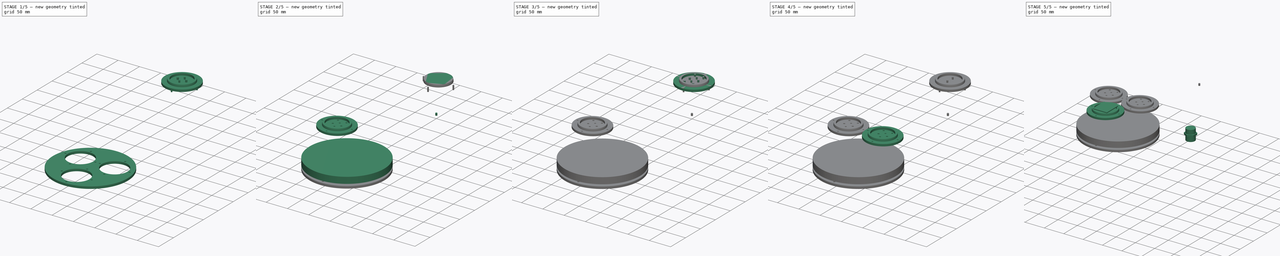
[diagram: build sequence overview — one tinted view per stage of 5, left to right]
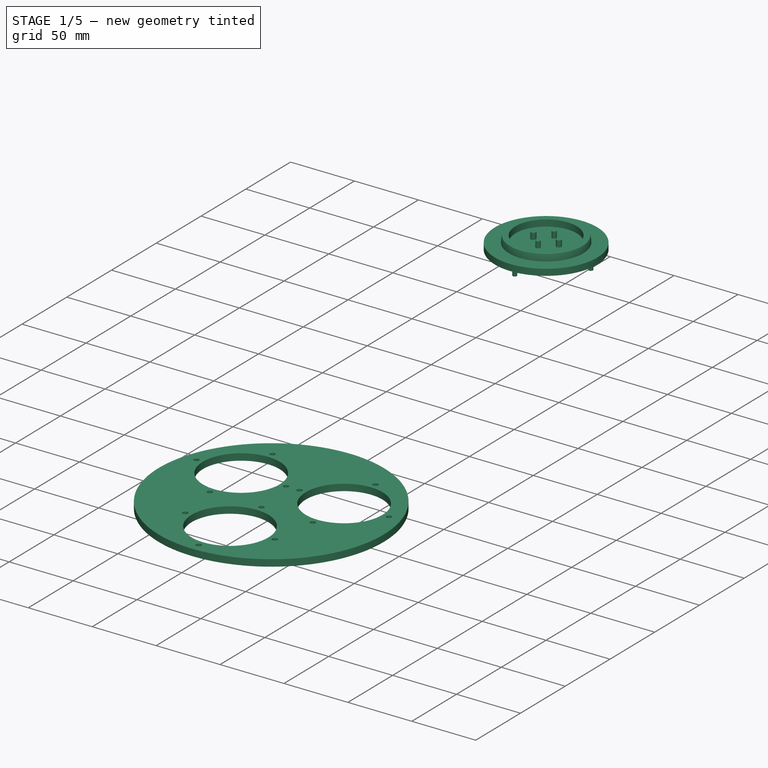
[diagram: stage 1 of 5 — iso view after this stage's code; geometry added in this stage tinted green]
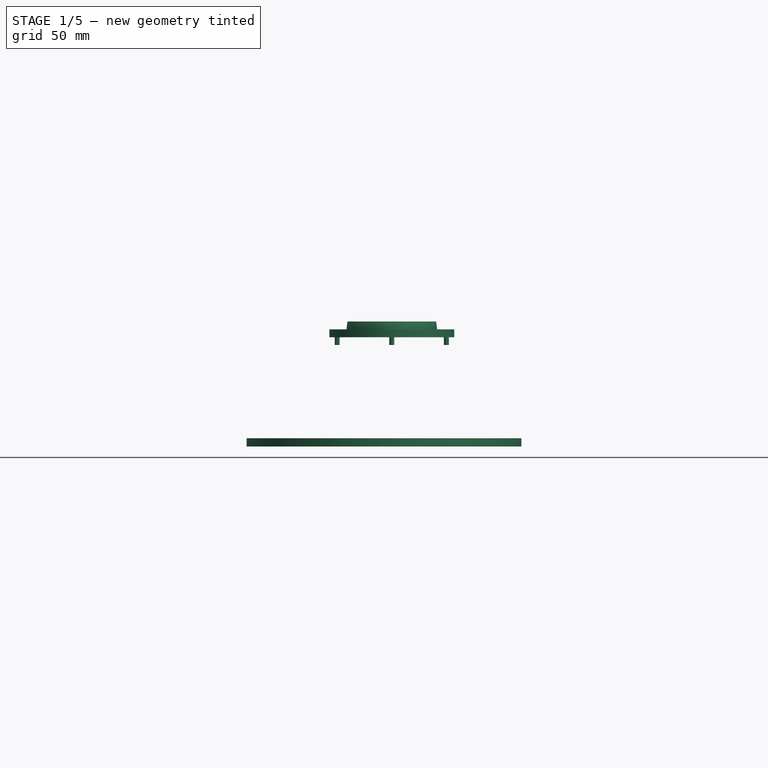
[diagram: stage 1 of 5 — front view after this stage's code; geometry added in this stage tinted green]
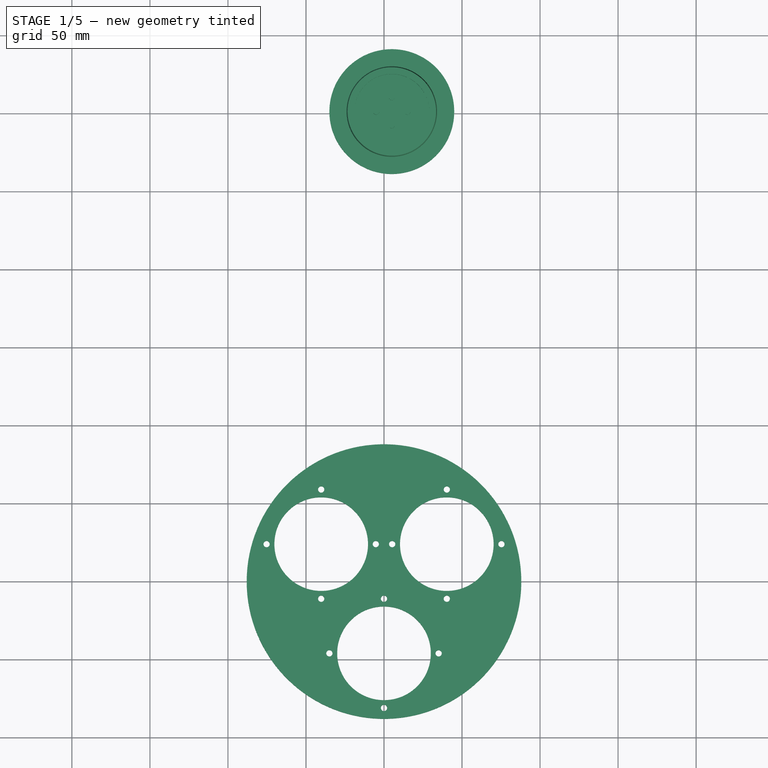
[diagram: stage 1 of 5 — top view after this stage's code; geometry added in this stage tinted green]
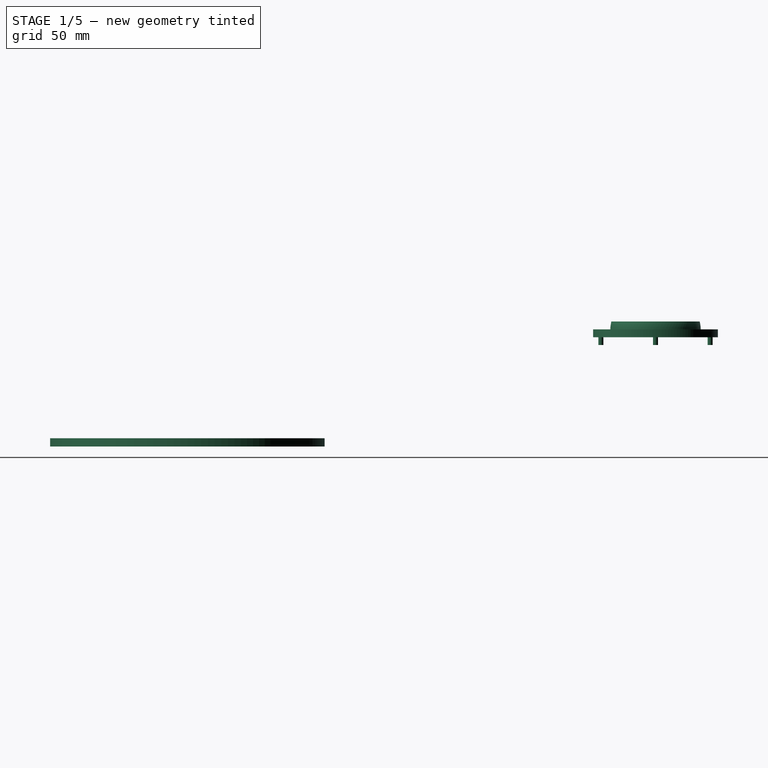
[diagram: stage 1 of 5 — right view after this stage's code; geometry added in this stage tinted green]
FCSTD DOCUMENT  (FreeCAD 0.20R29410 (Git))
Label: lightSensingModule
License: All rights reserved
LicenseURL: http://en.wikipedia.org/wiki/All_rights_reserved
objects: Part::Cylinder×45, Part::MultiFuse×25, Part::Feature×24, Part::Cut×9, Sketcher::SketchObject×3, Part::Sphere×3, Part::Extrusion×2, App::Part×1, Part::Box×1
note: 112 computed .brp shape members not serialized (recipe doc carries the construction recipe); baked Part::Feature solids carry a one-line shape summary decoded from their .brp

FEATURE [Part::Cylinder] Cylinder108  label="base006"
  Angle = 360
  AttacherType = Attacher::AttachEngine3D
  FirstAngle = 0
  Height = 5
  Placement = pos=(5,0,70) rot=(0,0,1;0rad)
  Radius = 40
  SecondAngle = 0
FEATURE [Part::Cylinder] Cylinder109  label="baseCut003"
  Angle = 360
  AttacherType = Attacher::AttachEngine3D
  FirstAngle = 0
  Height = 7
  Placement = pos=(5,0,74) rot=(0,0,1;0rad)
  Radius = 24
  SecondAngle = 0
FEATURE [Part::Cylinder] Cylinder110  label="wireCUt006"
  Angle = 360
  AttacherType = Attacher::AttachEngine3D
  FirstAngle = 0
  Height = 10
  Placement = pos=(-5,0,70) rot=(0,0,1;0rad)
  Radius = 2
  SecondAngle = 0
FEATURE [Part::Cylinder] Cylinder111  label="wireCUt007"
  Angle = 360
  AttacherType = Attacher::AttachEngine3D
  FirstAngle = 0
  Height = 10
  Placement = pos=(15,0,70) rot=(0,0,1;0rad)
  Radius = 2
  SecondAngle = 0
FEATURE [Part::Cylinder] Cylinder112  label="m3Cuts006"
  Angle = 360
  AttacherType = Attacher::AttachEngine3D
  FirstAngle = 0
  Height = 10
  Placement = pos=(5,-9,70) rot=(0,0,1;0rad)
  Radius = 1.75
  SecondAngle = 0
FEATURE [Part::Cylinder] Cylinder113  label="m3Cuts007"
  Angle = 360
  AttacherType = Attacher::AttachEngine3D
  FirstAngle = 0
  Height = 10
  Placement = pos=(5,9,70) rot=(0,0,1;0rad)
  Radius = 1.75
  SecondAngle = 0
FEATURE [Part::Cylinder] Cylinder114  label="m2HeatSetInsets012"
  Angle = 360
  AttacherType = Attacher::AttachEngine3D
  FirstAngle = 0
  Height = 10
  Placement = pos=(-30,0,65) rot=(0,0,1;0rad)
  Radius = 1.6
  SecondAngle = 0
FEATURE [Part::Cylinder] Cylinder115  label="m2HeatSetInsets013"
  Angle = 360
  AttacherType = Attacher::AttachEngine3D
  FirstAngle = 0
  Height = 10
  Placement = pos=(40,0,65) rot=(0,0,1;0rad)
  Radius = 1.6
  SecondAngle = 0
FEATURE [Part::Cylinder] Cylinder116  label="m2HeatSetInsets014"
  Angle = 360
  AttacherType = Attacher::AttachEngine3D
  FirstAngle = 0
  Height = 10
  Placement = pos=(5,35,65) rot=(0,0,1;0rad)
  Radius = 1.6
  SecondAngle = 0
FEATURE [Part::Cylinder] Cylinder117  label="m2HeatSetInsets015"
  Angle = 360
  AttacherType = Attacher::AttachEngine3D
  FirstAngle = 0
  Height = 10
  Placement = pos=(5,-35,65) rot=(0,0,1;0rad)
  Radius = 1.6
  SecondAngle = 0
FEATURE [Part::MultiFuse] Fusion033  label="wireCuts003"
  Shapes = -> [Cylinder110,Cylinder111]
FEATURE [Part::MultiFuse] Fusion034  label="m3Cute003"
  Shapes = -> [Cylinder112,Cylinder113]
FEATURE [Part::MultiFuse] Fusion037
  Shapes = -> [Cylinder114,Cylinder115,Cylinder116,Cylinder117]
FEATURE [Part::Sphere] Sphere004  label="SphereBase003"
  Angle1 = 0
  Angle2 = 12
  Angle3 = 360
  AttacherType = Attacher::AttachEngine3D
  Placement = pos=(5,0,74) rot=(0,0,1;0rad)
  Radius = 29
FEATURE [Part::Cut] Cut012
  Base = -> Sphere004
  Tool = -> Cylinder109
FEATURE [Part::MultiFuse] Fusion036  label="base007"
  Shapes = -> [Cylinder108,Cut012]
FEATURE [Sketcher::SketchObject] Sketch001
  FullyConstrained = true
  sketch-geometry (16):
    g0: Circle CenterX=0 CenterY=-300 CenterZ=0 NormalX=0 NormalY=0 NormalZ=1 AngleXU=0 Radius=88
    g1: Circle CenterX=-75.25 CenterY=-276 CenterZ=0 NormalX=0 NormalY=0 NormalZ=1 AngleXU=0 Radius=2
    g2: Circle CenterX=-40.25 CenterY=-241 CenterZ=0 NormalX=0 NormalY=0 NormalZ=1 AngleXU=0 Radius=2
    g3: Circle CenterX=-5.25 CenterY=-276 CenterZ=0 NormalX=0 NormalY=0 NormalZ=1 AngleXU=0 Radius=2
    g4: Circle CenterX=-40.25 CenterY=-311 CenterZ=0 NormalX=0 NormalY=0 NormalZ=1 AngleXU=0 Radius=2
    g5: Circle CenterX=40.25 CenterY=-241 CenterZ=0 NormalX=0 NormalY=0 NormalZ=1 AngleXU=0 Radius=2
    g6: Circle CenterX=75.25 CenterY=-276 CenterZ=0 NormalX=0 NormalY=0 NormalZ=1 AngleXU=0 Radius=2
    g7: Circle CenterX=40.25 CenterY=-311 CenterZ=0 NormalX=0 NormalY=0 NormalZ=1 AngleXU=0 Radius=2
    g8: Circle CenterX=5.25 CenterY=-276 CenterZ=0 NormalX=0 NormalY=0 NormalZ=1 AngleXU=0 Radius=2
    g9: Circle CenterX=0 CenterY=-311 CenterZ=0 NormalX=0 NormalY=0 NormalZ=1 AngleXU=0 Radius=2
    g10: Circle CenterX=-35 CenterY=-346 CenterZ=0 NormalX=0 NormalY=0 NormalZ=1 AngleXU=0 Radius=2
    g11: Circle CenterX=35 CenterY=-346 CenterZ=0 NormalX=0 NormalY=0 NormalZ=1 AngleXU=0 Radius=2
    g12: Circle CenterX=0 CenterY=-381 CenterZ=0 NormalX=0 NormalY=0 NormalZ=1 AngleXU=0 Radius=2
    g13: Circle CenterX=-40.25 CenterY=-276 CenterZ=0 NormalX=0 NormalY=0 NormalZ=1 AngleXU=0 Radius=30
    g14: Circle CenterX=40.25 CenterY=-276 CenterZ=0 NormalX=0 NormalY=0 NormalZ=1 AngleXU=0 Radius=30
    g15: Circle CenterX=0 CenterY=-346 CenterZ=0 NormalX=0 NormalY=0 NormalZ=1 AngleXU=0 Radius=30
  constraints (48):
    c: DistanceX(g0) = 0
    c: DistanceY(g0) = -300
    c: Radius(g0) = 88
    c: PointOnObject(g9,g-2)
    c: PointOnObject(g12,g-2)
    c: Equal(g12,g10)
    c: Equal(g12,g9)
    c: Equal(g12,g11)
    c: Equal(g12,g4)
    c: Equal(g12,g1)
    c: Equal(g12,g2)
    c: Equal(g12,g3)
    c: Equal(g12,g8)
    c: Equal(g12,g7)
    c: Equal(g12,g6)
    c: Equal(g12,g5)
    c: Radius(g12) = 2
    c: DistanceY(g6) = -276
    c: DistanceY(g8,g6) = 0
    c: DistanceY(g3,g6) = 0
    c: DistanceY(g6,g1) = 0
    c: DistanceY(g11,g10) = 0
    c: DistanceY(g2,g5) = 0
    c: DistanceY(g4,g7) = 0
    c: DistanceX(g5,g7) = 0
    c: DistanceX(g4,g2) = 0
    c: DistanceX(g3) = -5.25
    c: DistanceX(g8) = 5.25
    c: DistanceX(g1) = -75.25
    c: DistanceX(g6) = 75.25
    c: DistanceX(g2) = -40.25
    c: DistanceY(g2) = -241
    c: DistanceX(g5) = 40.25
    c: DistanceY(g4) = -311
    c: DistanceY(g9) = -311
    c: DistanceY(g10) = -346
    c: DistanceX(g10) = -35
    c: DistanceX(g11) = 35
    c: DistanceY(g12) = -381
    c: PointOnObject(g15,g-2)
    c: Equal(g14,g13)
    c: Equal(g14,g15)
    c: Radius(g14) = 30
    c: DistanceY(g13,g1) = 0
    c: DistanceX(g2,g13) = 0
    c: DistanceX(g14,g5) = 0
    c: DistanceY(g14,g1) = 0
    c: DistanceY(g10,g15) = 0
FEATURE [Sketcher::SketchObject] Sketch002
  FullyConstrained = true
  sketch-geometry (3):
    g0: Circle CenterX=0 CenterY=-346 CenterZ=0 NormalX=0 NormalY=0 NormalZ=1 AngleXU=0 Radius=40
    g1: Circle CenterX=40 CenterY=-276 CenterZ=0 NormalX=0 NormalY=0 NormalZ=1 AngleXU=0 Radius=40
    g2: Circle CenterX=-40 CenterY=-276 CenterZ=0 NormalX=0 NormalY=0 NormalZ=1 AngleXU=0 Radius=40
  constraints (9):
    c: DistanceX(g0) = 0
    c: DistanceY(g0) = -346
    c: Equal(g1,g2)
    c: Equal(g1,g0)
    c: Radius(g1) = 40
    c: DistanceY(g2,g1) = 0
    c: DistanceX(g2) = -40
    c: DistanceX(g1) = 40
    c: DistanceY(g1) = -276
FEATURE [Part::Extrusion] Extrude001
  Base = -> Sketch001
  Dir = (0,0,1)
  DirMode = 2
  FaceMakerClass = Part::FaceMakerBullseye
  LengthFwd = 5.25
  LengthRev = 0
  Solid = true
  Symmetric = false
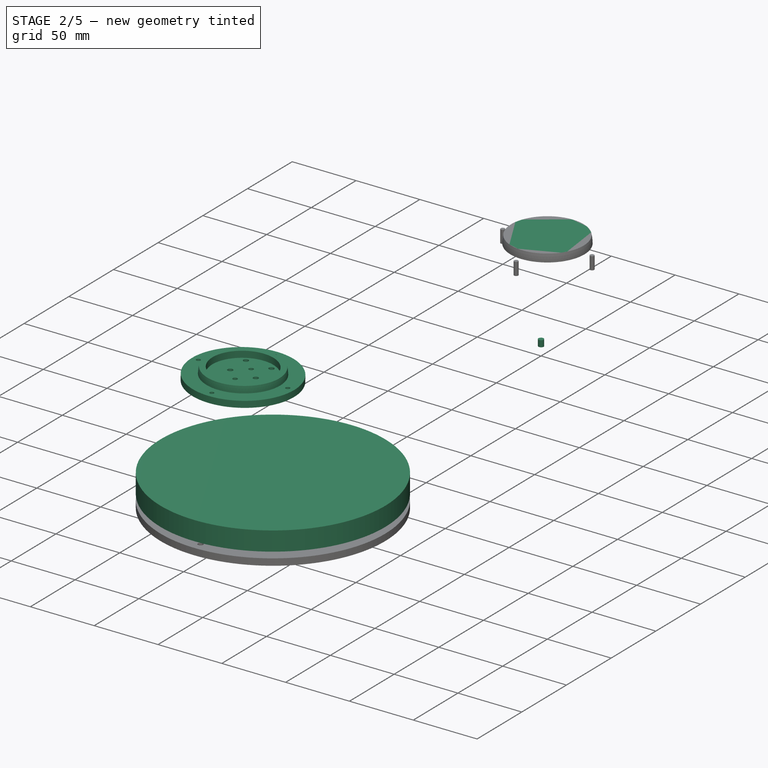
[diagram: stage 2 of 5 — iso view after this stage's code; geometry added in this stage tinted green]
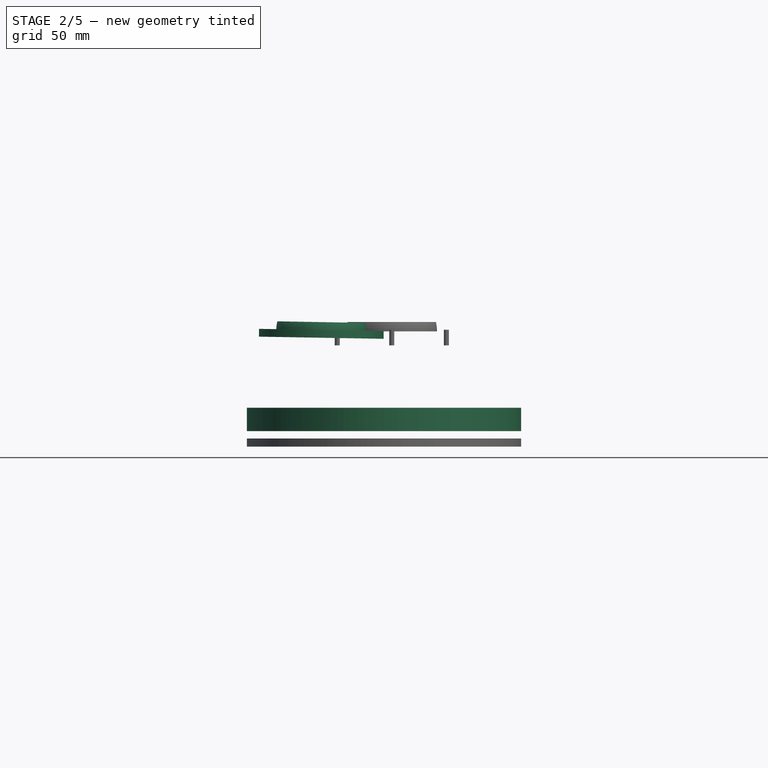
[diagram: stage 2 of 5 — front view after this stage's code; geometry added in this stage tinted green]
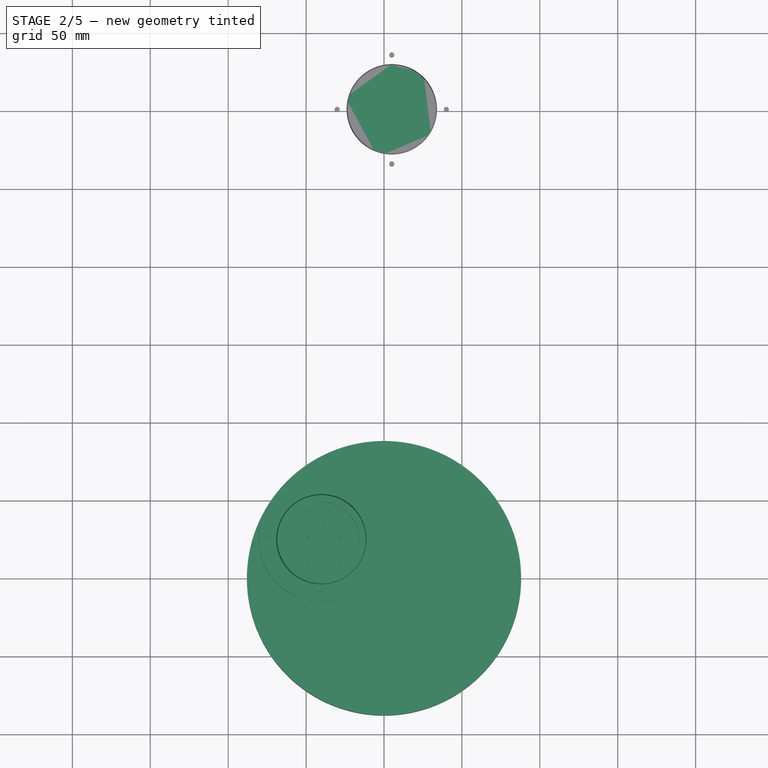
[diagram: stage 2 of 5 — top view after this stage's code; geometry added in this stage tinted green]
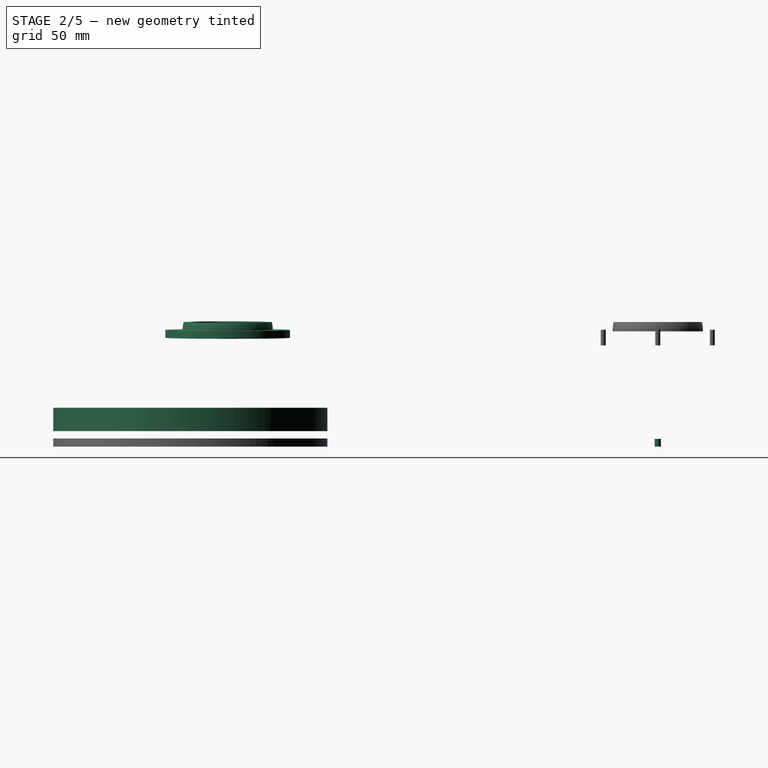
[diagram: stage 2 of 5 — right view after this stage's code; geometry added in this stage tinted green]
FEATURE [Part::Cylinder] Cylinder060  label="m2HeatSetInsets008"
  Angle = 360
  AttacherType = Attacher::AttachEngine3D
  FirstAngle = 0
  Height = 10
  Placement = pos=(-30,0,65) rot=(0,0,1;0rad)
  Radius = 1.6
  SecondAngle = 0
FEATURE [Part::Cylinder] Cylinder061  label="m2HeatSetInsets009"
  Angle = 360
  AttacherType = Attacher::AttachEngine3D
  FirstAngle = 0
  Height = 10
  Placement = pos=(40,0,65) rot=(0,0,1;0rad)
  Radius = 1.6
  SecondAngle = 0
FEATURE [Part::Cylinder] Cylinder062  label="m2HeatSetInsets010"
  Angle = 360
  AttacherType = Attacher::AttachEngine3D
  FirstAngle = 0
  Height = 10
  Placement = pos=(5,35,65) rot=(0,0,1;0rad)
  Radius = 1.6
  SecondAngle = 0
FEATURE [Part::Cylinder] Cylinder063  label="m2HeatSetInsets011"
  Angle = 360
  AttacherType = Attacher::AttachEngine3D
  FirstAngle = 0
  Height = 10
  Placement = pos=(5,-35,65) rot=(0,0,1;0rad)
  Radius = 1.6
  SecondAngle = 0
FEATURE [Part::Sphere] Sphere003  label="SphereBase002"
  Angle1 = 0
  Angle2 = 12
  Angle3 = 360
  AttacherType = Attacher::AttachEngine3D
  Placement = pos=(5,0,74) rot=(0,0,1;0rad)
  Radius = 29
FEATURE [Part::Cylinder] Cylinder102  label="cover002"
  Angle = 360
  AttacherType = Attacher::AttachEngine3D
  FirstAngle = 0
  Height = 15
  Placement = pos=(0,-300,10) rot=(0,0,-1;1.5708rad)
  Radius = 88
  SecondAngle = 0
FEATURE [Part::Cylinder] Cylinder103  label="cover003"
  Angle = 360
  AttacherType = Attacher::AttachEngine3D
  FirstAngle = 0
  Height = 5
  Radius = 2
  SecondAngle = 0
FEATURE [Part::Cylinder] Cylinder104
  Angle = 360
  AttacherType = Attacher::AttachEngine3D
  FirstAngle = 0
  Height = 10
  Placement = pos=(0,-21,0) rot=(0,0,1;0rad)
  Radius = 2
  SecondAngle = 0
FEATURE [Part::Cylinder] Cylinder105
  Angle = 360
  AttacherType = Attacher::AttachEngine3D
  FirstAngle = 0
  Height = 10
  Placement = pos=(20,-21,0) rot=(0,0,1;0rad)
  Radius = 2
  SecondAngle = 0
FEATURE [Part::Cylinder] Cylinder106
  Angle = 360
  AttacherType = Attacher::AttachEngine3D
  FirstAngle = 0
  Height = 10
  Placement = pos=(0,-21,0) rot=(0,0,1;0rad)
  Radius = 2
  SecondAngle = 0
FEATURE [Part::Cylinder] Cylinder107
  Angle = 360
  AttacherType = Attacher::AttachEngine3D
  FirstAngle = 0
  Height = 10
  Placement = pos=(20,-21,0) rot=(0,0,1;0rad)
  Radius = 2
  SecondAngle = 0
FEATURE [Part::MultiFuse] Fusion030  label="m3HeatSetCuts009"
  Placement = pos=(-5,38.5,70) rot=(0,0,1;0rad)
  Shapes = -> [Cylinder105,Cylinder104]
FEATURE [Part::MultiFuse] Fusion031  label="m3HeatSetCuts010"
  Placement = pos=(-5,3.5,70) rot=(0,0,1;0rad)
  Shapes = -> [Cylinder107,Cylinder106]
FEATURE [Part::MultiFuse] Fusion032  label="m3HeatSetCuts011"
  Shapes = -> [Fusion031,Fusion030]
FEATURE [Part::MultiFuse] Fusion035  label="baseCUts003"
  Shapes = -> [Fusion032,Fusion033,Fusion034]
FEATURE [Part::Cut] Cut013
  Base = -> Fusion036
  Tool = -> Fusion035
FEATURE [Part::Cut] Cut014  label="lightModule003"
  Base = -> Cut013
  Placement = pos=(-46.5,-276,0) rot=(0,1,0;0.017453rad)
  Tool = -> Fusion037
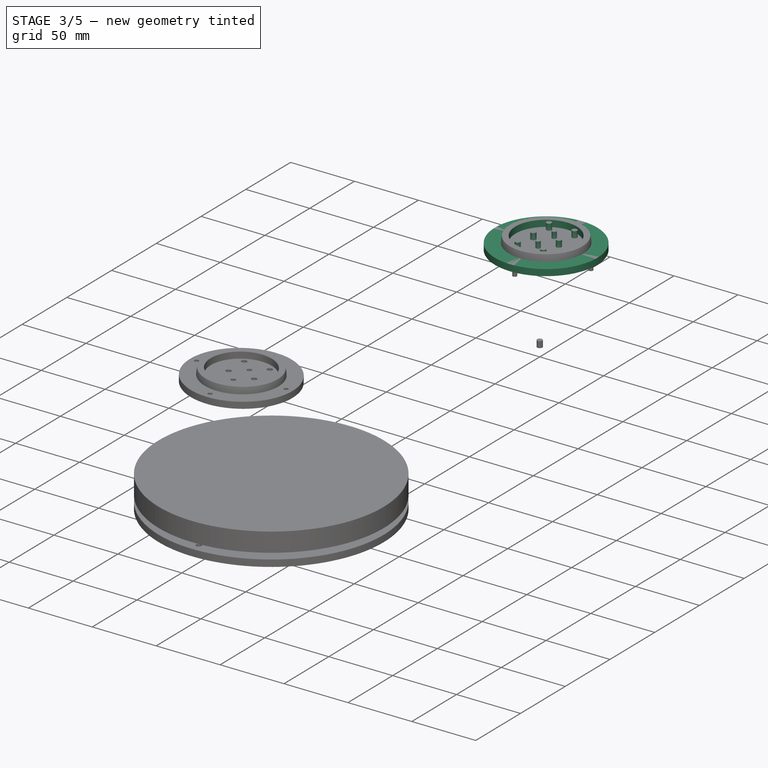
[diagram: stage 3 of 5 — iso view after this stage's code; geometry added in this stage tinted green]
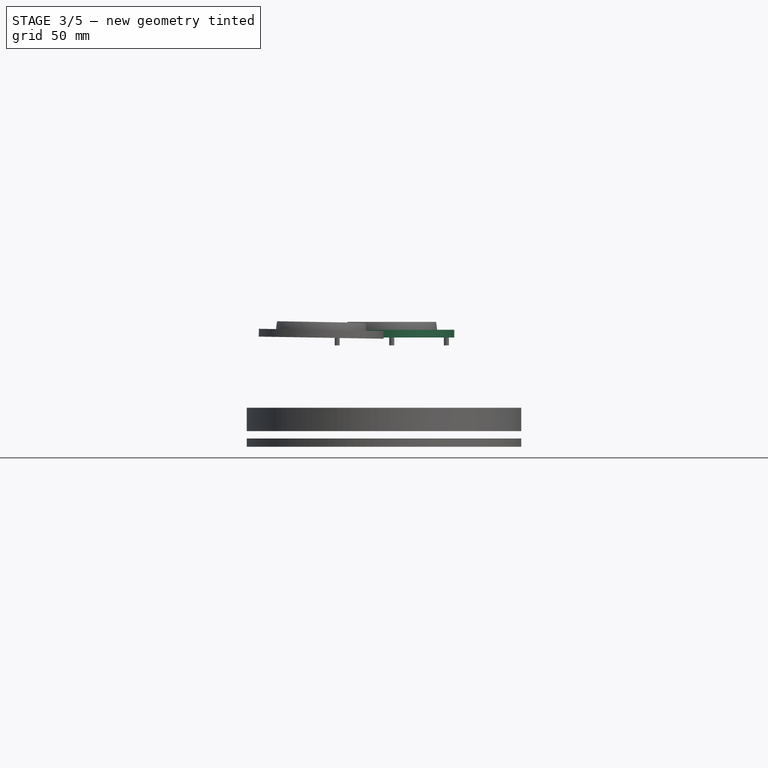
[diagram: stage 3 of 5 — front view after this stage's code; geometry added in this stage tinted green]
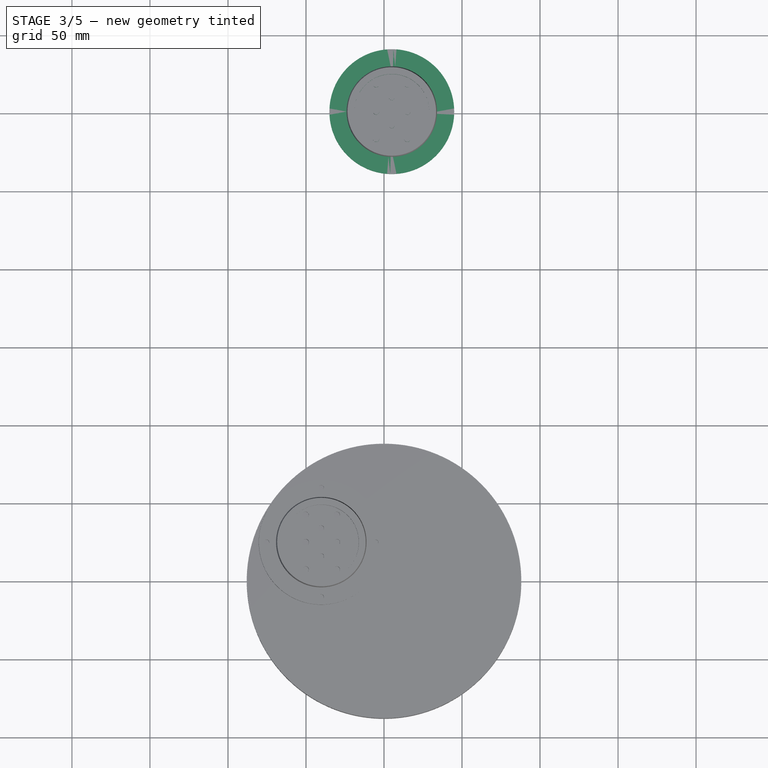
[diagram: stage 3 of 5 — top view after this stage's code; geometry added in this stage tinted green]
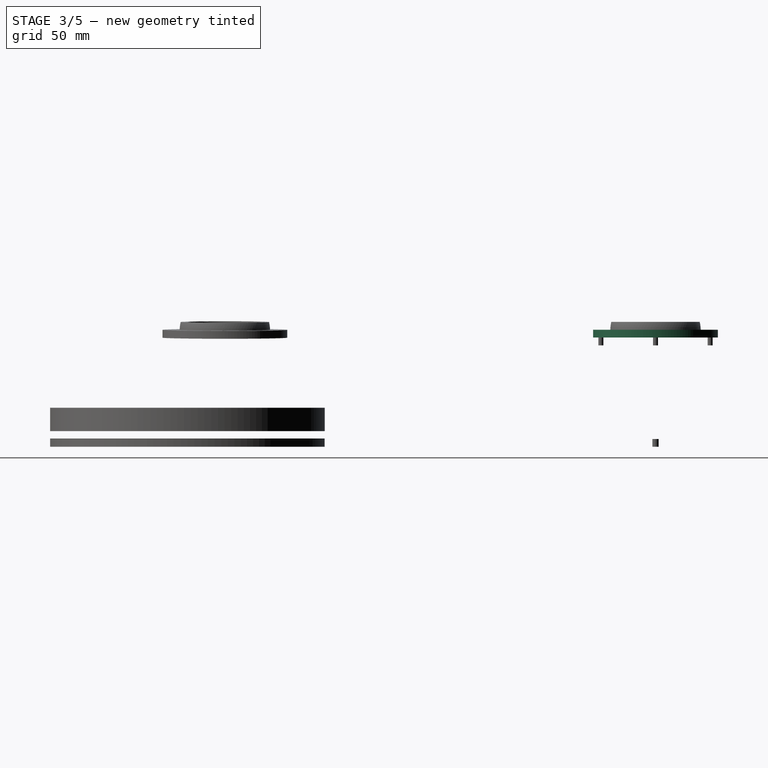
[diagram: stage 3 of 5 — right view after this stage's code; geometry added in this stage tinted green]
FEATURE [Part::Cylinder] Cylinder050
  Angle = 360
  AttacherType = Attacher::AttachEngine3D
  FirstAngle = 0
  Height = 10
  Placement = pos=(0,-21,0) rot=(0,0,1;0rad)
  Radius = 2
  SecondAngle = 0
FEATURE [Part::Cylinder] Cylinder051
  Angle = 360
  AttacherType = Attacher::AttachEngine3D
  FirstAngle = 0
  Height = 10
  Placement = pos=(20,-21,0) rot=(0,0,1;0rad)
  Radius = 2
  SecondAngle = 0
FEATURE [Part::Cylinder] Cylinder052
  Angle = 360
  AttacherType = Attacher::AttachEngine3D
  FirstAngle = 0
  Height = 10
  Placement = pos=(0,-21,0) rot=(0,0,1;0rad)
  Radius = 2
  SecondAngle = 0
FEATURE [Part::Cylinder] Cylinder053
  Angle = 360
  AttacherType = Attacher::AttachEngine3D
  FirstAngle = 0
  Height = 10
  Placement = pos=(20,-21,0) rot=(0,0,1;0rad)
  Radius = 2
  SecondAngle = 0
FEATURE [Part::Cylinder] Cylinder054  label="base004"
  Angle = 360
  AttacherType = Attacher::AttachEngine3D
  FirstAngle = 0
  Height = 5
  Placement = pos=(5,0,70) rot=(0,0,1;0rad)
  Radius = 40
  SecondAngle = 0
FEATURE [Part::Cylinder] Cylinder055  label="baseCut002"
  Angle = 360
  AttacherType = Attacher::AttachEngine3D
  FirstAngle = 0
  Height = 7
  Placement = pos=(5,0,74) rot=(0,0,1;0rad)
  Radius = 24
  SecondAngle = 0
FEATURE [Part::Cylinder] Cylinder056  label="wireCUt004"
  Angle = 360
  AttacherType = Attacher::AttachEngine3D
  FirstAngle = 0
  Height = 10
  Placement = pos=(-5,0,70) rot=(0,0,1;0rad)
  Radius = 2
  SecondAngle = 0
FEATURE [Part::Cylinder] Cylinder057  label="wireCUt005"
  Angle = 360
  AttacherType = Attacher::AttachEngine3D
  FirstAngle = 0
  Height = 10
  Placement = pos=(15,0,70) rot=(0,0,1;0rad)
  Radius = 2
  SecondAngle = 0
FEATURE [Part::Cylinder] Cylinder058  label="m3Cuts004"
  Angle = 360
  AttacherType = Attacher::AttachEngine3D
  FirstAngle = 0
  Height = 10
  Placement = pos=(5,-9,70) rot=(0,0,1;0rad)
  Radius = 1.75
  SecondAngle = 0
FEATURE [Part::Cylinder] Cylinder059  label="m3Cuts005"
  Angle = 360
  AttacherType = Attacher::AttachEngine3D
  FirstAngle = 0
  Height = 10
  Placement = pos=(5,9,70) rot=(0,0,1;0rad)
  Radius = 1.75
  SecondAngle = 0
FEATURE [Part::MultiFuse] Fusion022  label="m3HeatSetCuts006"
  Placement = pos=(-5,38.5,70) rot=(0,0,1;0rad)
  Shapes = -> [Cylinder051,Cylinder050]
FEATURE [Part::MultiFuse] Fusion023  label="m3HeatSetCuts007"
  Placement = pos=(-5,3.5,70) rot=(0,0,1;0rad)
  Shapes = -> [Cylinder053,Cylinder052]
FEATURE [Part::MultiFuse] Fusion025  label="wireCuts002"
  Shapes = -> [Cylinder056,Cylinder057]
FEATURE [Part::MultiFuse] Fusion026  label="m3Cute002"
  Shapes = -> [Cylinder058,Cylinder059]
FEATURE [Part::MultiFuse] Fusion029
  Shapes = -> [Cylinder060,Cylinder061,Cylinder062,Cylinder063]
FEATURE [Part::Cut] Cut009
  Base = -> Sphere003
  Tool = -> Cylinder055
FEATURE [Part::MultiFuse] Fusion028  label="base005"
  Shapes = -> [Cylinder054,Cut009]
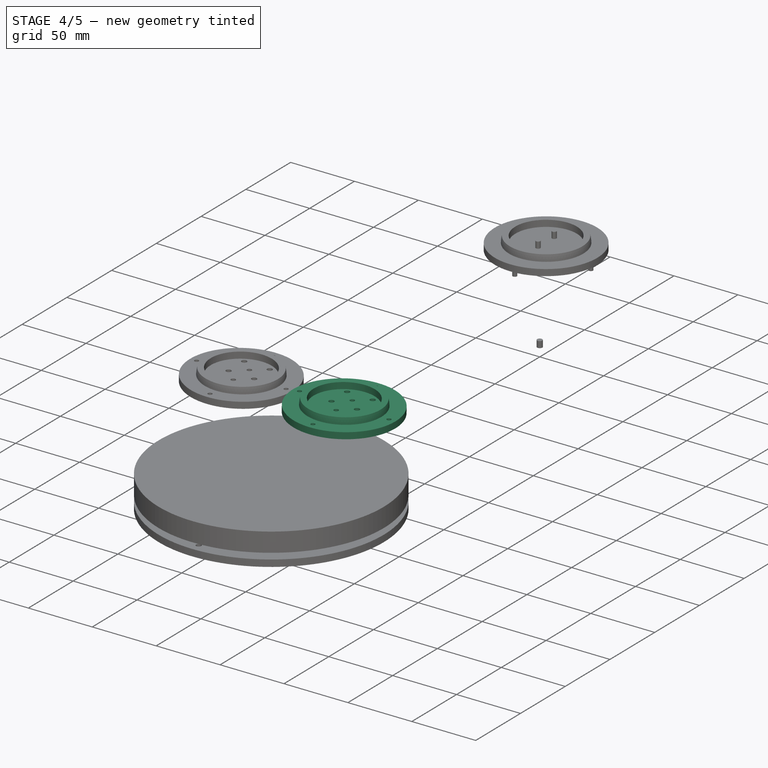
[diagram: stage 4 of 5 — iso view after this stage's code; geometry added in this stage tinted green]
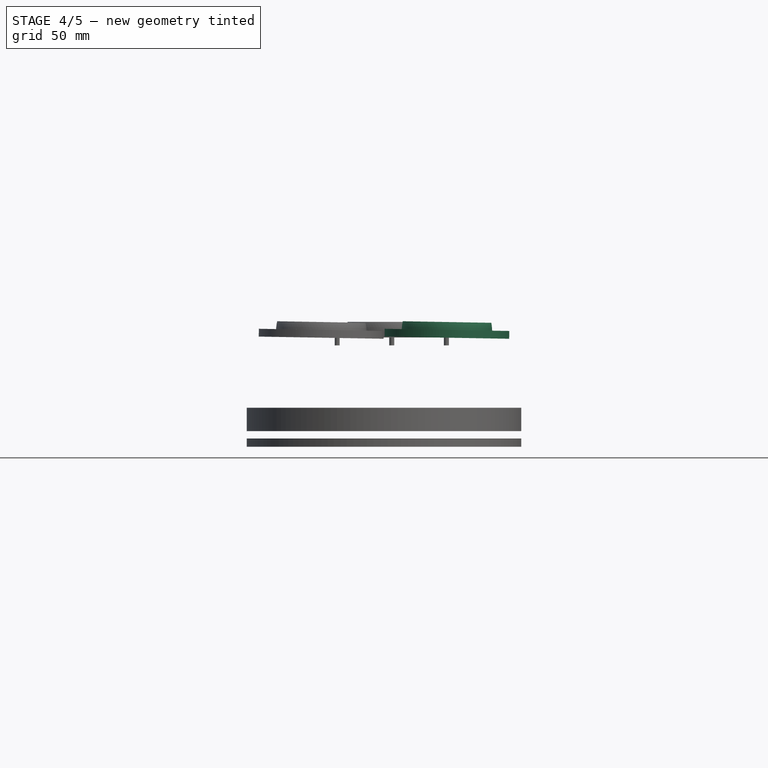
[diagram: stage 4 of 5 — front view after this stage's code; geometry added in this stage tinted green]
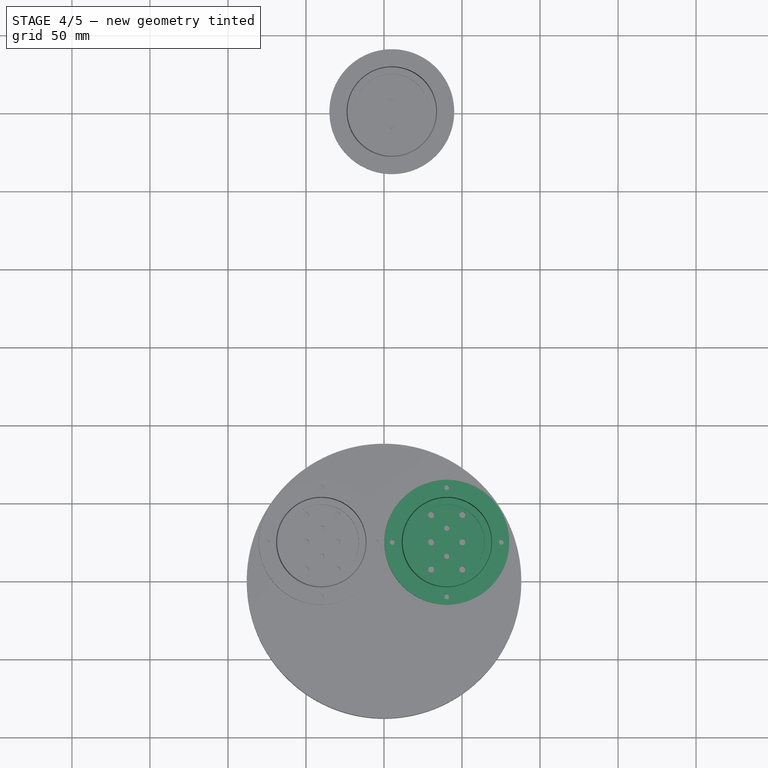
[diagram: stage 4 of 5 — top view after this stage's code; geometry added in this stage tinted green]
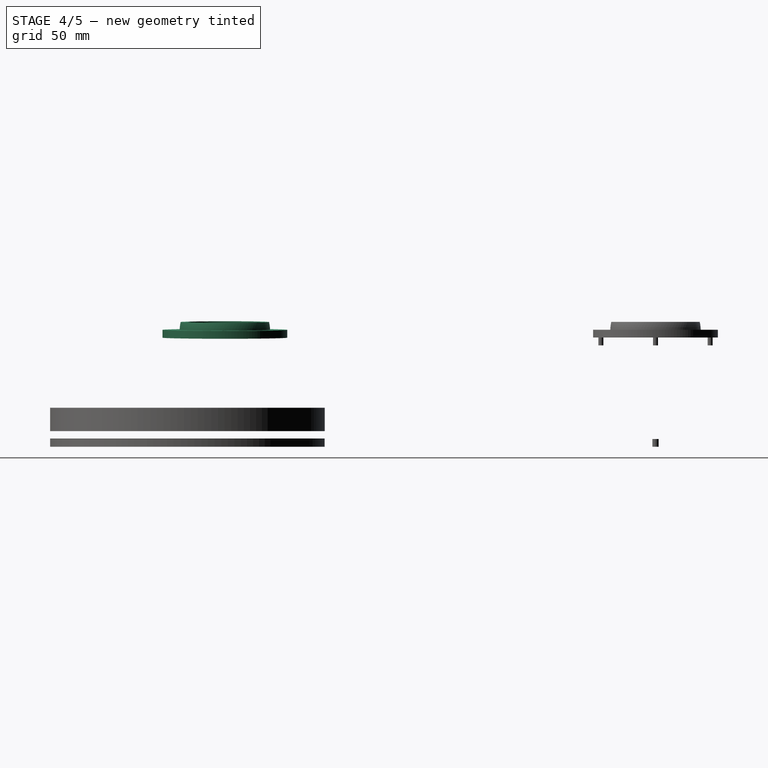
[diagram: stage 4 of 5 — right view after this stage's code; geometry added in this stage tinted green]
FEATURE [Part::Cylinder] Cylinder040  label="base002"
  Angle = 360
  AttacherType = Attacher::AttachEngine3D
  FirstAngle = 0
  Height = 5
  Placement = pos=(5,0,70) rot=(0,0,1;0rad)
  Radius = 40
  SecondAngle = 0
FEATURE [Part::Cylinder] Cylinder041  label="baseCut001"
  Angle = 360
  AttacherType = Attacher::AttachEngine3D
  FirstAngle = 0
  Height = 7
  Placement = pos=(5,0,74) rot=(0,0,1;0rad)
  Radius = 24
  SecondAngle = 0
FEATURE [Part::Cylinder] Cylinder044  label="m3Cuts002"
  Angle = 360
  AttacherType = Attacher::AttachEngine3D
  FirstAngle = 0
  Height = 10
  Placement = pos=(5,-9,70) rot=(0,0,1;0rad)
  Radius = 1.75
  SecondAngle = 0
FEATURE [Part::Cylinder] Cylinder045  label="m3Cuts003"
  Angle = 360
  AttacherType = Attacher::AttachEngine3D
  FirstAngle = 0
  Height = 10
  Placement = pos=(5,9,70) rot=(0,0,1;0rad)
  Radius = 1.75
  SecondAngle = 0
FEATURE [Part::Cylinder] Cylinder046  label="m2HeatSetInsets004"
  Angle = 360
  AttacherType = Attacher::AttachEngine3D
  FirstAngle = 0
  Height = 10
  Placement = pos=(-30,0,65) rot=(0,0,1;0rad)
  Radius = 1.6
  SecondAngle = 0
FEATURE [Part::Cylinder] Cylinder047  label="m2HeatSetInsets005"
  Angle = 360
  AttacherType = Attacher::AttachEngine3D
  FirstAngle = 0
  Height = 10
  Placement = pos=(40,0,65) rot=(0,0,1;0rad)
  Radius = 1.6
  SecondAngle = 0
FEATURE [Part::Cylinder] Cylinder048  label="m2HeatSetInsets006"
  Angle = 360
  AttacherType = Attacher::AttachEngine3D
  FirstAngle = 0
  Height = 10
  Placement = pos=(5,35,65) rot=(0,0,1;0rad)
  Radius = 1.6
  SecondAngle = 0
FEATURE [Part::Cylinder] Cylinder049  label="m2HeatSetInsets007"
  Angle = 360
  AttacherType = Attacher::AttachEngine3D
  FirstAngle = 0
  Height = 10
  Placement = pos=(5,-35,65) rot=(0,0,1;0rad)
  Radius = 1.6
  SecondAngle = 0
FEATURE [Part::MultiFuse] Fusion018  label="m3Cute001"
  Shapes = -> [Cylinder044,Cylinder045]
FEATURE [Part::MultiFuse] Fusion021
  Shapes = -> [Cylinder046,Cylinder047,Cylinder048,Cylinder049]
FEATURE [Part::Sphere] Sphere002  label="SphereBase001"
  Angle1 = 0
  Angle2 = 12
  Angle3 = 360
  AttacherType = Attacher::AttachEngine3D
  Placement = pos=(5,0,74) rot=(0,0,1;0rad)
  Radius = 29
FEATURE [Part::Cut] Cut006
  Base = -> Sphere002
  Tool = -> Cylinder041
FEATURE [Part::MultiFuse] Fusion020  label="base003"
  Shapes = -> [Cylinder040,Cut006]
FEATURE [Part::MultiFuse] Fusion024  label="m3HeatSetCuts008"
  Shapes = -> [Fusion023,Fusion022]
FEATURE [Part::MultiFuse] Fusion027  label="baseCUts002"
  Shapes = -> [Fusion024,Fusion025,Fusion026]
FEATURE [Part::Cut] Cut010
  Base = -> Fusion028
  Tool = -> Fusion027
FEATURE [Part::Cut] Cut011  label="lightModule002"
  Base = -> Cut010
  Placement = pos=(34,-276,0) rot=(0,1,0;0.017453rad)
  Tool = -> Fusion029
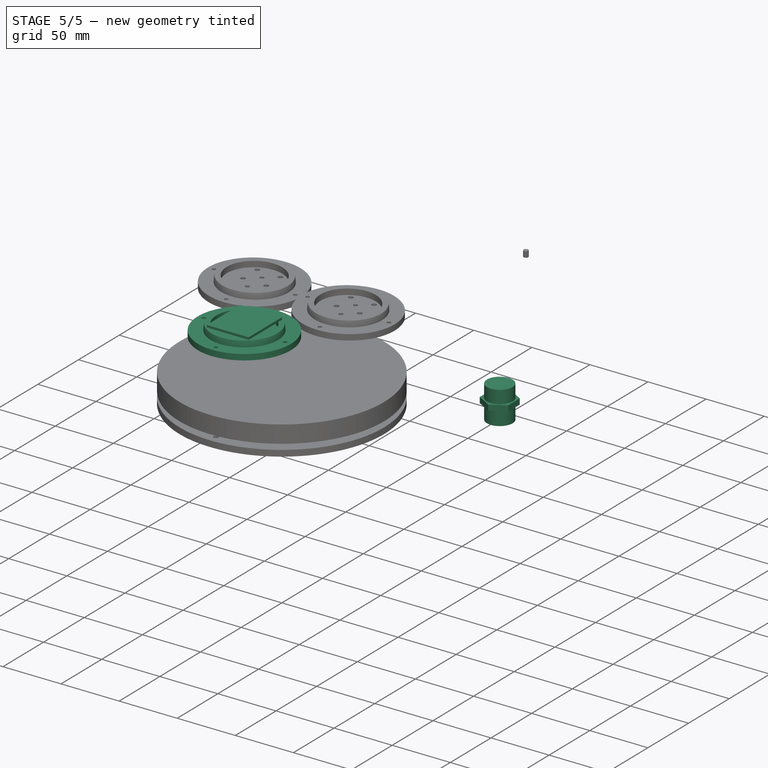
[diagram: stage 5 of 5 — iso view after this stage's code; geometry added in this stage tinted green]
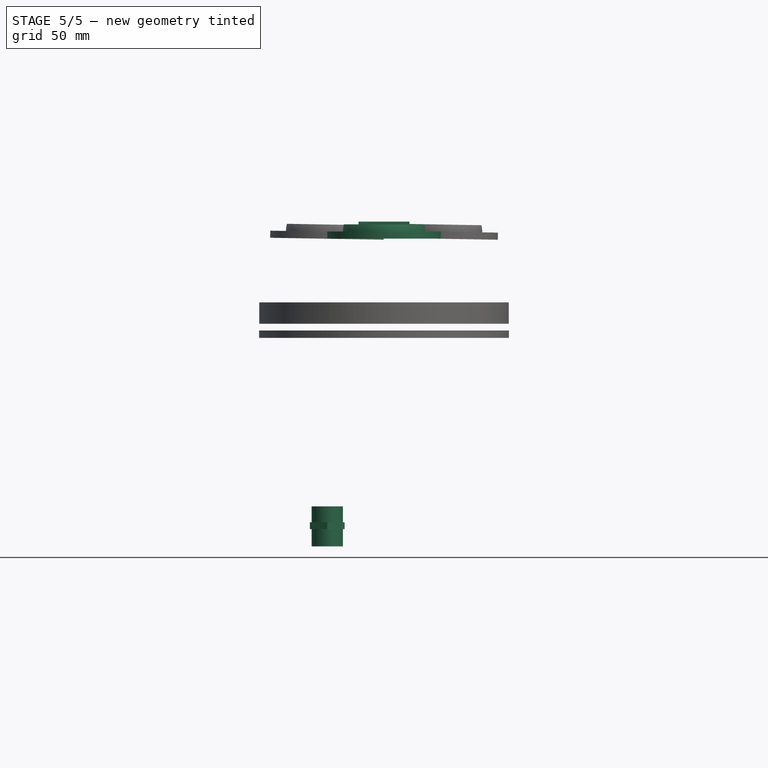
[diagram: stage 5 of 5 — front view after this stage's code; geometry added in this stage tinted green]
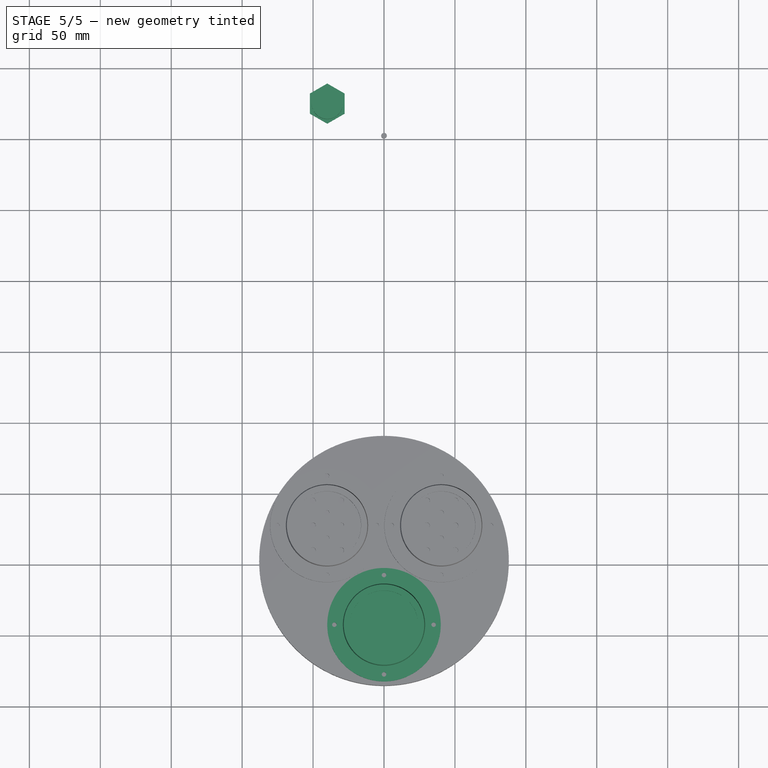
[diagram: stage 5 of 5 — top view after this stage's code; geometry added in this stage tinted green]
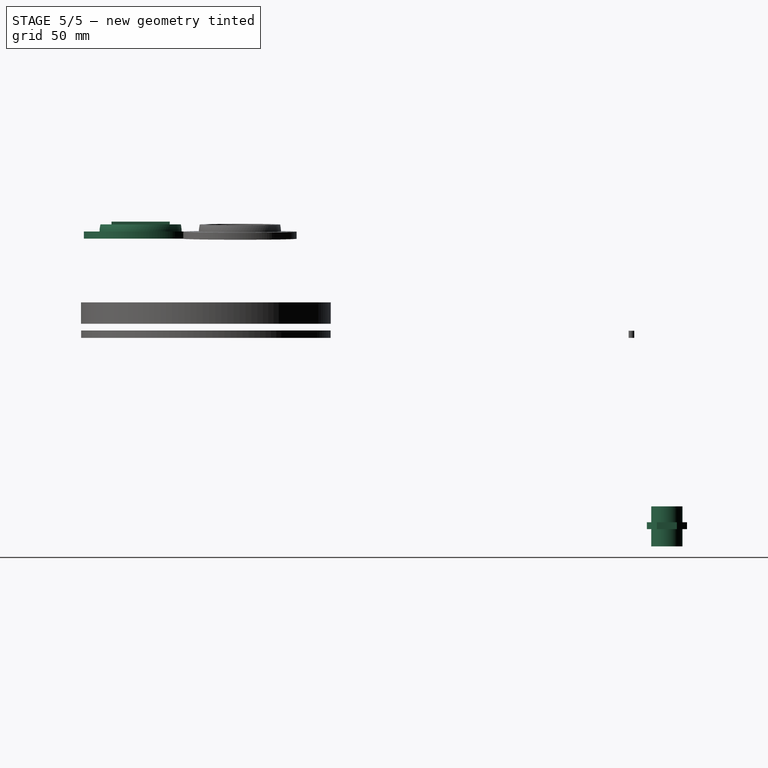
[diagram: stage 5 of 5 — right view after this stage's code; geometry added in this stage tinted green]
FEATURE [Part::Feature] Part__Feature025  label="CUI_VGS-35C-12"
  Placement = pos=(-55,36,1) rot=(1,0,0;3.14159rad)
  shape: bbox 82.03 x 30.06 x 100 mm, 2215 faces, 10 solids (baked)
FEATURE [Part::Feature] Part__Feature007  label="Heat Sink"
  shape: bbox 100 x 91 x 19 mm, 161 faces (baked)
FEATURE [Part::Feature] Part__Feature008  label="Battery Holder"
  shape: bbox 28.5 x 16 x 6 mm, 91 faces (baked)
FEATURE [Part::Feature] Part__Feature009  label="DC Jack"
  shape: bbox 7.6 x 11.5 x 9.75 mm, 10 faces (baked)
FEATURE [Part::Feature] Part__Feature010  label="PCB"
  shape: bbox 90 x 90 x 3.3 mm, 59 faces (baked)
FEATURE [Part::Feature] Part__Feature011  label="HDMI"
  shape: bbox 14.51 x 11.61 x 5.506 mm, 31 faces (baked)
FEATURE [Part::Feature] Part__Feature012  label="Ethernet"
  shape: bbox 15.9 x 21.4 x 13.5 mm, 25 faces (baked)
FEATURE [Part::Feature] Part__Feature013  label="USB 3.0 B"
  shape: bbox 14.55 x 17.5 x 16.15 mm, 36 faces (baked)
FEATURE [Part::Feature] Part__Feature014  label="USB 3.0 A"
  shape: bbox 14.55 x 17.5 x 16.15 mm, 36 faces (baked)
FEATURE [Part::Feature] Part__Feature015  label="Audio Jack"
  shape: bbox 6.5 x 14 x 4 mm, 10 faces (baked)
FEATURE [Part::Feature] Part__Feature016  label="Fan Plug"
  shape: bbox 3.75 x 7.5 x 4.75 mm, 32 faces (baked)
FEATURE [Part::Feature] Part__Feature017  label="REMOCON"
  shape: bbox 7.006 x 5.006 x 12.01 mm, 30 faces (baked)
FEATURE [Part::Feature] Part__Feature018  label="eMMC"
  shape: bbox 13.5 x 18.5 x 2.8 mm, 33 faces (baked)
FEATURE [Part::Feature] Part__Feature019  label="MicroUSB"
  shape: bbox 7.012 x 4.616 x 3.511 mm, 31 faces (baked)
FEATURE [Part::Feature] Part__Feature020  label="Switch"
  shape: bbox 9 x 5.74 x 3.5 mm, 11 faces (baked)
FEATURE [Part::Feature] Part__Feature021  label="MicroSD Card Socket"
  shape: bbox 11.5 x 5.5 x 3.5 mm, 11 faces (baked)
FEATURE [Part::Feature] Part__Feature022  label="7 Pin Header"
  shape: bbox 17.5 x 2.5 x 8 mm, 41 faces (baked)
FEATURE [Part::Feature] Part__Feature023  label="UART"
  shape: bbox 5 x 12.5 x 6 mm, 43 faces (baked)
FEATURE [Part::Feature] Part__Feature024  label="40 Pin Header"
  shape: bbox 5 x 50 x 8 mm, 206 faces (baked)
FEATURE [App::Part] Odroid_N2__v4  label="Odroid-N2+ v4"
  Group = -> [Part__Feature007,Part__Feature008,Part__Feature009,Part__Feature010,Part__Feature011,Part__Feature012,Part__Feature013,Part__Feature014,Part__Feature015,Part__Feature016,Part__Feature017,Part__Feature018,Part__Feature019,Part__Feature020,Part__Feature021,Part__Feature022,Part__Feature023,Part__Feature024]
  Origin = -> Origin002
  Placement = pos=(31,-814,-44.46) rot=(0,0,1;0rad)
FEATURE [Part::Cylinder] Cylinder002  label="plugIn"
  Angle = 360
  AttacherType = Attacher::AttachEngine3D
  FirstAngle = 0
  Height = 28.19
  Radius = 11
  SecondAngle = 0
FEATURE [Part::Feature] Part__Feature027  label="DCC-RJ6ST-310"
  Placement = pos=(-85,25,-123) rot=(0,0,1;0rad)
  shape: bbox 40.36 x 68.07 x 51.72 mm, 441 faces (baked)
FEATURE [Part::Feature] Part__Feature028  label="DCP-RJ6ST-F"
  Placement = pos=(-85,25,-123.5) rot=(0,1,0;3.14159rad)
  shape: bbox 40.26 x 40.33 x 38.85 mm, 485 faces, 2 solids (baked)
FEATURE [Sketcher::SketchObject] Sketch
  FullyConstrained = true
  sketch-geometry (7):
    g0: LineSegment StartX=12.25 StartY=-7.07254 StartZ=0 EndX=12.25 EndY=7.07254 EndZ=0
    g1: LineSegment StartX=12.25 StartY=7.07254 StartZ=0 EndX=0 EndY=14.1451 EndZ=0
    g2: LineSegment StartX=0 StartY=14.1451 StartZ=0 EndX=-12.25 EndY=7.07254 EndZ=0
    g3: LineSegment StartX=-12.25 StartY=7.07254 StartZ=0 EndX=-12.25 EndY=-7.07254 EndZ=0
    g4: LineSegment StartX=-12.25 StartY=-7.07254 StartZ=0 EndX=0 EndY=-14.1451 EndZ=0
    g5: LineSegment StartX=0 StartY=-14.1451 StartZ=0 EndX=12.25 EndY=-7.07254 EndZ=0
    g6: Circle CenterX=0 CenterY=0 CenterZ=0 NormalX=0 NormalY=0 NormalZ=1 AngleXU=0 Radius=14.1451
  constraints (17):
    c: Coincident(g0,g1)
    c: Coincident(g1,g2)
    c: Coincident(g2,g3)
    c: Coincident(g3,g4)
    c: Coincident(g4,g5)
    c: Coincident(g5,g0)
    c: Equal(g0, g1-g5) x5
    c: PointOnObject(g0,g6)
    c: PointOnObject(g1,g6)
    c: PointOnObject(g2,g6)
    c: PointOnObject(g3,g6)
    c: PointOnObject(g4,g6)
    c: PointOnObject(g5,g6)
    c: DistanceY(g6) = 0
    c: DistanceX(g6) = 0
    c: DistanceX(g1) = 0
    c: DistanceX(g2,g0) = 24.5
FEATURE [Part::Extrusion] Extrude
  Base = -> Sketch
  Dir = (0,0,1)
  DirMode = 2
  FaceMakerClass = Part::FaceMakerBullseye
  LengthFwd = 4.83
  LengthRev = 0
  Placement = pos=(0,0,12.19) rot=(0,0,1;0rad)
  Solid = true
  Symmetric = false
FEATURE [Part::MultiFuse] Fusion  label="powerPlug"
  Placement = pos=(-40,25,-147) rot=(0,0,1;0rad)
  Shapes = -> [Cylinder002,Extrude]
FEATURE [Part::Box] Box005  label="as7265x"
  AttacherType = Attacher::AttachEngine3D
  Height = 2
  Length = 36
  Placement = pos=(-18,-366.5,80) rot=(0,0,1;0rad)
  Width = 41
FEATURE [Part::Feature] Part__Feature029  label="3136N138_T-Slotted Framing"
  Placement = pos=(0,0,0) rot=(0,0,1;3.14159rad)
  shape: bbox 101.6 x 133.4 x 139.7 mm, 136 faces (baked)
FEATURE [Part::Feature] Part__Feature030  label="47065T801_T-Slotted Framing"
  Placement = pos=(0,-197,-2.2e-14) rot=(-1,0,0;1.5708rad)
  shape: bbox 25.4 x 152.4 x 25.4 mm, 108 faces (baked)
FEATURE [Part::Feature] Part__Feature031  label="47065T801_T-Slotted Framing001"
  Placement = pos=(0,-247,0) rot=(-1,0,0;1.5708rad)
  shape: bbox 25.4 x 152.4 x 25.4 mm, 108 faces (baked)
FEATURE [Part::Cylinder] Cylinder036
  Angle = 360
  AttacherType = Attacher::AttachEngine3D
  FirstAngle = 0
  Height = 10
  Placement = pos=(0,-21,0) rot=(0,0,1;0rad)
  Radius = 2
  SecondAngle = 0
FEATURE [Part::Cylinder] Cylinder037
  Angle = 360
  AttacherType = Attacher::AttachEngine3D
  FirstAngle = 0
  Height = 10
  Placement = pos=(20,-21,0) rot=(0,0,1;0rad)
  Radius = 2
  SecondAngle = 0
FEATURE [Part::Cylinder] Cylinder038
  Angle = 360
  AttacherType = Attacher::AttachEngine3D
  FirstAngle = 0
  Height = 10
  Placement = pos=(0,-21,0) rot=(0,0,1;0rad)
  Radius = 2
  SecondAngle = 0
FEATURE [Part::Cylinder] Cylinder039
  Angle = 360
  AttacherType = Attacher::AttachEngine3D
  FirstAngle = 0
  Height = 10
  Placement = pos=(20,-21,0) rot=(0,0,1;0rad)
  Radius = 2
  SecondAngle = 0
FEATURE [Part::Cylinder] Cylinder042  label="wireCUt002"
  Angle = 360
  AttacherType = Attacher::AttachEngine3D
  FirstAngle = 0
  Height = 10
  Placement = pos=(-5,0,70) rot=(0,0,1;0rad)
  Radius = 2
  SecondAngle = 0
FEATURE [Part::Cylinder] Cylinder043  label="wireCUt003"
  Angle = 360
  AttacherType = Attacher::AttachEngine3D
  FirstAngle = 0
  Height = 10
  Placement = pos=(15,0,70) rot=(0,0,1;0rad)
  Radius = 2
  SecondAngle = 0
FEATURE [Part::MultiFuse] Fusion014  label="m3HeatSetCuts003"
  Placement = pos=(-5,38.5,70) rot=(0,0,1;0rad)
  Shapes = -> [Cylinder037,Cylinder036]
FEATURE [Part::MultiFuse] Fusion015  label="m3HeatSetCuts004"
  Placement = pos=(-5,3.5,70) rot=(0,0,1;0rad)
  Shapes = -> [Cylinder039,Cylinder038]
FEATURE [Part::MultiFuse] Fusion016  label="m3HeatSetCuts005"
  Shapes = -> [Fusion015,Fusion014]
FEATURE [Part::MultiFuse] Fusion017  label="wireCuts001"
  Shapes = -> [Cylinder042,Cylinder043]
FEATURE [Part::MultiFuse] Fusion019  label="baseCUts001"
  Shapes = -> [Fusion016,Fusion017,Fusion018]
FEATURE [Part::Cut] Cut007
  Base = -> Fusion020
  Tool = -> Fusion019
FEATURE [Part::Cut] Cut008  label="lightModule001"
  Base = -> Cut007
  Placement = pos=(-5,-346,0) rot=(0,1,0;0rad)
  Tool = -> Fusion021
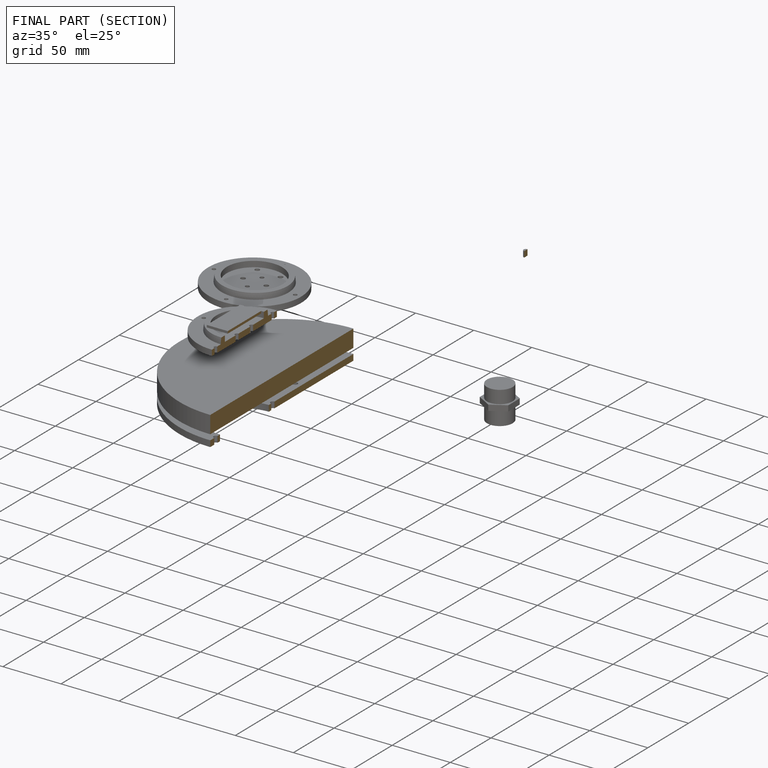
[diagram: finished part — half-section view (interior)]
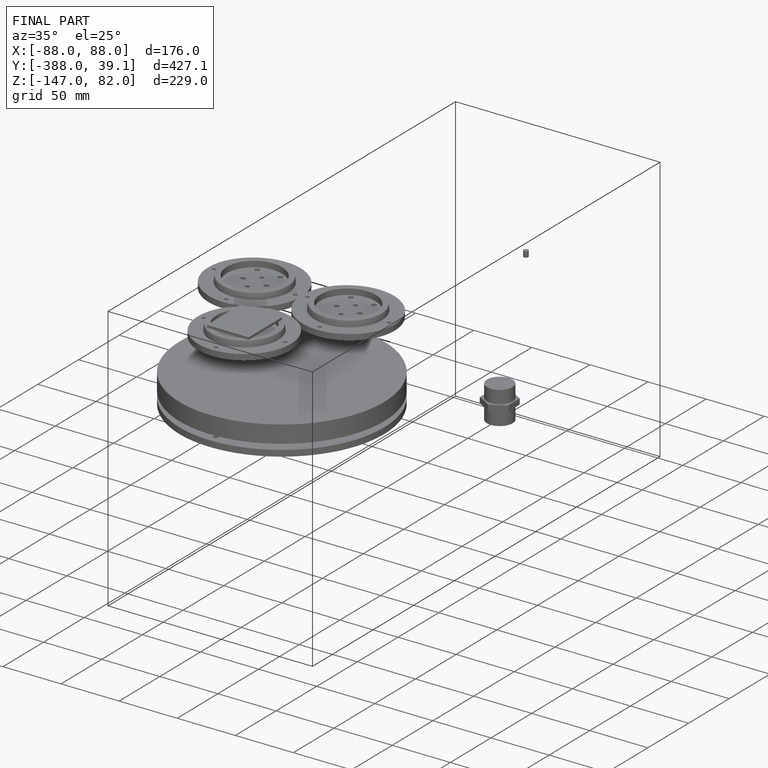
[diagram: finished part — iso view with bounding-box wireframe]
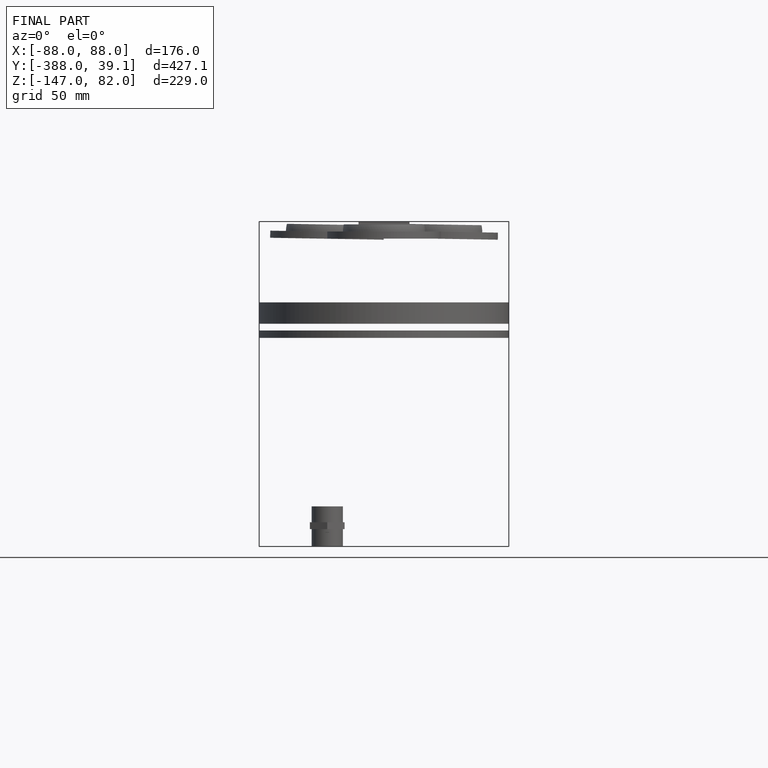
[diagram: finished part — front view with bounding-box wireframe]
